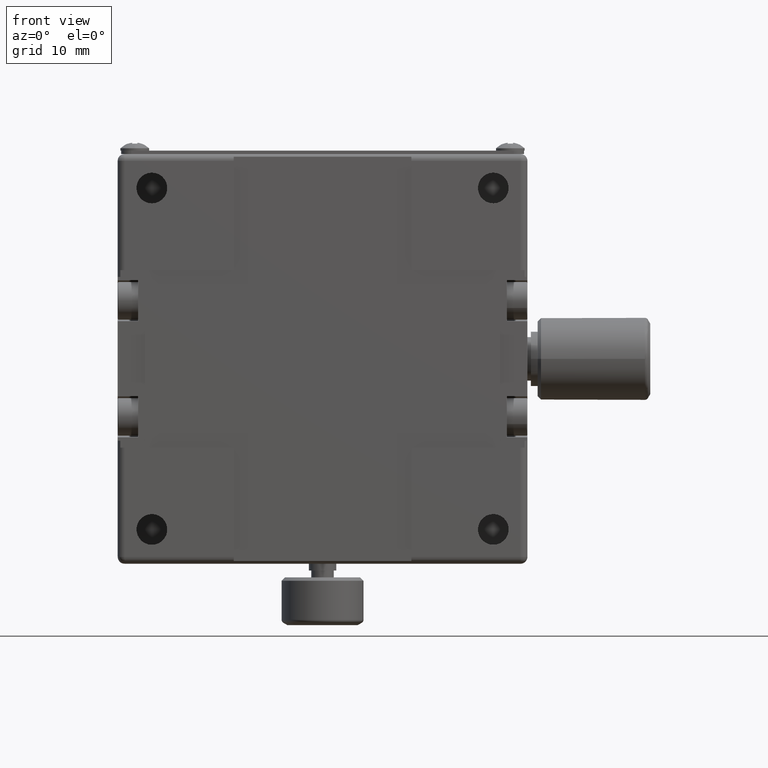
[diagram: clean part render]
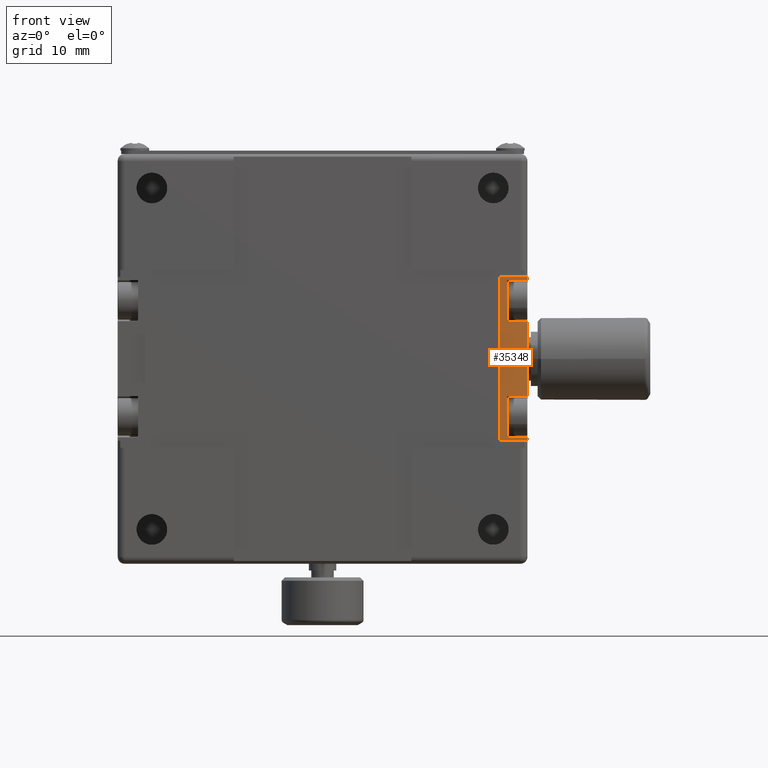
[diagram: same view with one face highlighted and labeled with its STEP entity id]
A machine part, front view. The second image highlights one B-rep face of the part: STEP entity #35348.
In plain terms, the highlighted planar face has unit normal (0, 1, -0).
Its self-contained STEP definition (entity closure, byte-faithful):
#53 = VERTEX_POINT ( 'NONE', #21721 ) ;
#278 = CARTESIAN_POINT ( 'NONE',  ( 27.20294266869609956, -24.89231131468095271, 5.500000000000000000 ) ) ;
#440 = VECTOR ( 'NONE', #8437, 1000.000000000000000 ) ;
#912 = EDGE_CURVE ( 'NONE', #13073, #11714, #18835, .T. ) ;
#1218 = DIRECTION ( 'NONE',  ( -2.053761849782435228E-19, -1.665334536937734811E-16, -1.000000000000000000 ) ) ;
#1238 = LINE ( 'NONE', #3839, #7517 ) ;
#2395 = DIRECTION ( 'NONE',  ( 1.000000000000000000, -5.419128459088559373E-17, -2.053761849781410152E-19 ) ) ;
#2646 = EDGE_CURVE ( 'NONE', #31829, #6796, #21951, .T. ) ;
#2654 = VECTOR ( 'NONE', #4672, 1000.000000000000000 ) ;
#2740 = CARTESIAN_POINT ( 'NONE',  ( 27.20294266869609956, -24.89231131468095271, 5.500000000000000000 ) ) ;
#2783 = VECTOR ( 'NONE', #30238, 1000.000000000000000 ) ;
#2976 = EDGE_CURVE ( 'NONE', #53, #17067, #1238, .T. ) ;
#3292 = LINE ( 'NONE', #20455, #25927 ) ;
#3839 = CARTESIAN_POINT ( 'NONE',  ( 26.20294266869610311, -24.89231131468095271, 12.00000000000000000 ) ) ;
#4033 = AXIS2_PLACEMENT_3D ( 'NONE', #7649, #21632, #23918 ) ;
#4130 = FACE_OUTER_BOUND ( 'NONE', #33799, .T. ) ;
#4303 = DIRECTION ( 'NONE',  ( -2.053761849782440284E-19, -1.713802692070384842E-16, -1.000000000000000000 ) ) ;
#4446 = CARTESIAN_POINT ( 'NONE',  ( 30.20294266869610311, -24.89231131468095271, 11.50000000000000000 ) ) ;
#4672 = DIRECTION ( 'NONE',  ( 1.000000000000000000, -5.419128459088559373E-17, -2.053761849781410152E-19 ) ) ;
#4855 = CARTESIAN_POINT ( 'NONE',  ( 17.59825631254680189, -24.89231131468095271, -11.50000000000000000 ) ) ;
#5420 = ORIENTED_EDGE ( 'NONE', *, *, #12001, .F. ) ;
#5466 = EDGE_CURVE ( 'NONE', #31829, #21477, #7473, .T. ) ;
#6149 = CARTESIAN_POINT ( 'NONE',  ( 30.20294266869610311, -24.89231131468095271, 12.00000000000000000 ) ) ;
#6205 = VERTEX_POINT ( 'NONE', #26783 ) ;
#6520 = VERTEX_POINT ( 'NONE', #30016 ) ;
#6796 = VERTEX_POINT ( 'NONE', #18736 ) ;
#7170 = CARTESIAN_POINT ( 'NONE',  ( 30.20294266869610311, -24.89231131468095271, 12.00000000000000000 ) ) ;
#7473 = LINE ( 'NONE', #30055, #2783 ) ;
#7517 = VECTOR ( 'NONE', #12628, 1000.000000000000000 ) ;
#7649 = CARTESIAN_POINT ( 'NONE',  ( 30.20294266869610311, -24.89231131468095271, 12.00000000000000000 ) ) ;
#8437 = DIRECTION ( 'NONE',  ( -1.000000000000000000, 5.419128459088559373E-17, 2.053761849781410152E-19 ) ) ;
#8524 = CARTESIAN_POINT ( 'NONE',  ( 30.20294266869610311, -24.89231131468095271, 12.00000000000000000 ) ) ;
#9177 = LINE ( 'NONE', #20544, #32006 ) ;
#9504 = ORIENTED_EDGE ( 'NONE', *, *, #27034, .F. ) ;
#9576 = DIRECTION ( 'NONE',  ( -2.053761849782435228E-19, -1.665334536937734811E-16, -1.000000000000000000 ) ) ;
#9732 = EDGE_CURVE ( 'NONE', #32969, #13073, #9177, .T. ) ;
#9882 = ORIENTED_EDGE ( 'NONE', *, *, #20983, .T. ) ;
#9965 = LINE ( 'NONE', #23790, #9989 ) ;
#9989 = VECTOR ( 'NONE', #18541, 1000.000000000000000 ) ;
#10022 = CARTESIAN_POINT ( 'NONE',  ( 30.20294266869610311, -24.89231131468095271, -11.50000000000000000 ) ) ;
#10566 = LINE ( 'NONE', #8524, #22503 ) ;
#10568 = VECTOR ( 'NONE', #2395, 1000.000000000000000 ) ;
#11070 = VERTEX_POINT ( 'NONE', #12225 ) ;
#11091 = EDGE_CURVE ( 'NONE', #6520, #28673, #12962, .T. ) ;
#11179 = CARTESIAN_POINT ( 'NONE',  ( 17.59825631254680189, -24.89231131468095271, -5.500000000000000000 ) ) ;
#11593 = LINE ( 'NONE', #25391, #440 ) ;
#11714 = VERTEX_POINT ( 'NONE', #10022 ) ;
#11869 = VERTEX_POINT ( 'NONE', #21934 ) ;
#12001 = EDGE_CURVE ( 'NONE', #21477, #32876, #10566, .T. ) ;
#12013 = LINE ( 'NONE', #23751, #14301 ) ;
#12225 = CARTESIAN_POINT ( 'NONE',  ( 30.06896807248055126, -24.89231131468095271, 12.00000000000000000 ) ) ;
#12628 = DIRECTION ( 'NONE',  ( -2.053761849782435228E-19, -1.665334536937734811E-16, -1.000000000000000000 ) ) ;
#12962 = LINE ( 'NONE', #7170, #13024 ) ;
#13024 = VECTOR ( 'NONE', #1218, 1000.000000000000000 ) ;
#13073 = VERTEX_POINT ( 'NONE', #28321 ) ;
#13108 = ORIENTED_EDGE ( 'NONE', *, *, #32103, .T. ) ;
#13676 = LINE ( 'NONE', #16435, #28653 ) ;
#14301 = VECTOR ( 'NONE', #9576, 1000.000000000000000 ) ;
#15833 = ORIENTED_EDGE ( 'NONE', *, *, #9732, .F. ) ;
#16435 = CARTESIAN_POINT ( 'NONE',  ( 30.20294266869610311, -24.89231131468095271, -12.00000000000000000 ) ) ;
#17067 = VERTEX_POINT ( 'NONE', #26717 ) ;
#18541 = DIRECTION ( 'NONE',  ( 1.000000000000000000, -5.419128459088559373E-17, -2.053761849781410152E-19 ) ) ;
#18736 = CARTESIAN_POINT ( 'NONE',  ( 27.20294266869609956, -24.89231131468095271, 11.50000000000000000 ) ) ;
#18835 = LINE ( 'NONE', #4855, #2654 ) ;
#19067 = LINE ( 'NONE', #6149, #35319 ) ;
#19241 = DIRECTION ( 'NONE',  ( -1.000000000000000000, 5.419128459088559373E-17, 2.053761849781410152E-19 ) ) ;
#19368 = EDGE_CURVE ( 'NONE', #6796, #28673, #9965, .T. ) ;
#19837 = ORIENTED_EDGE ( 'NONE', *, *, #5466, .F. ) ;
#20027 = ORIENTED_EDGE ( 'NONE', *, *, #26707, .F. ) ;
#20455 = CARTESIAN_POINT ( 'NONE',  ( 30.20294266869610311, -24.89231131468095271, -12.00000000000000000 ) ) ;
#20544 = CARTESIAN_POINT ( 'NONE',  ( 27.20294266869609956, -24.89231131468095271, -5.500000000000000000 ) ) ;
#20633 = EDGE_CURVE ( 'NONE', #6520, #11070, #11593, .T. ) ;
#20983 = EDGE_CURVE ( 'NONE', #32969, #32876, #25344, .T. ) ;
#21468 = CARTESIAN_POINT ( 'NONE',  ( 27.20294266869609956, -24.89231131468095271, -5.500000000000000000 ) ) ;
#21477 = VERTEX_POINT ( 'NONE', #22499 ) ;
#21589 = ORIENTED_EDGE ( 'NONE', *, *, #24304, .F. ) ;
#21632 = DIRECTION ( 'NONE',  ( 5.419128459088559373E-17, 1.000000000000000000, -1.665334536937734811E-16 ) ) ;
#21721 = CARTESIAN_POINT ( 'NONE',  ( 26.20294266869610311, -24.89231131468095271, 12.00000000000000000 ) ) ;
#21934 = CARTESIAN_POINT ( 'NONE',  ( 30.06896807248055126, -24.89231131468095271, -12.00000000000000000 ) ) ;
#21951 = LINE ( 'NONE', #2740, #32538 ) ;
#22499 = CARTESIAN_POINT ( 'NONE',  ( 30.20294266869610311, -24.89231131468095271, 5.500000000000000000 ) ) ;
#22503 = VECTOR ( 'NONE', #33881, 1000.000000000000000 ) ;
#23751 = CARTESIAN_POINT ( 'NONE',  ( 30.20294266869610311, -24.89231131468095271, 12.00000000000000000 ) ) ;
#23790 = CARTESIAN_POINT ( 'NONE',  ( 17.59825631254680189, -24.89231131468095271, 11.50000000000000000 ) ) ;
#23918 = DIRECTION ( 'NONE',  ( 0.000000000000000000, -1.665334536937734811E-16, -1.000000000000000000 ) ) ;
#24304 = EDGE_CURVE ( 'NONE', #11869, #17067, #3292, .T. ) ;
#25344 = LINE ( 'NONE', #11179, #10568 ) ;
#25391 = CARTESIAN_POINT ( 'NONE',  ( 30.20294266869610311, -24.89231131468095271, 12.00000000000000000 ) ) ;
#25706 = ORIENTED_EDGE ( 'NONE', *, *, #20633, .T. ) ;
#25927 = VECTOR ( 'NONE', #34453, 1000.000000000000000 ) ;
#26707 = EDGE_CURVE ( 'NONE', #6205, #11869, #13676, .T. ) ;
#26717 = CARTESIAN_POINT ( 'NONE',  ( 26.20294266869610311, -24.89231131468095271, -12.00000000000000000 ) ) ;
#26783 = CARTESIAN_POINT ( 'NONE',  ( 30.20294266869610311, -24.89231131468095271, -12.00000000000000000 ) ) ;
#27034 = EDGE_CURVE ( 'NONE', #11714, #6205, #12013, .T. ) ;
#27526 = ORIENTED_EDGE ( 'NONE', *, *, #2976, .T. ) ;
#28123 = DIRECTION ( 'NONE',  ( 2.053761849782435228E-19, 1.616866381805085026E-16, 1.000000000000000000 ) ) ;
#28172 = DIRECTION ( 'NONE',  ( -1.000000000000000000, 5.419128459088559373E-17, 2.053761849781410152E-19 ) ) ;
#28321 = CARTESIAN_POINT ( 'NONE',  ( 27.20294266869609956, -24.89231131468095271, -11.50000000000000000 ) ) ;
#28653 = VECTOR ( 'NONE', #19241, 1000.000000000000000 ) ;
#28673 = VERTEX_POINT ( 'NONE', #4446 ) ;
#29162 = CARTESIAN_POINT ( 'NONE',  ( 30.20294266869610311, -24.89231131468095271, -5.500000000000000000 ) ) ;
#30016 = CARTESIAN_POINT ( 'NONE',  ( 30.20294266869610311, -24.89231131468095271, 12.00000000000000000 ) ) ;
#30055 = CARTESIAN_POINT ( 'NONE',  ( 17.59825631254680189, -24.89231131468095271, 5.500000000000000000 ) ) ;
#30238 = DIRECTION ( 'NONE',  ( 1.000000000000000000, -5.419128459088559373E-17, -2.053761849781410152E-19 ) ) ;
#31829 = VERTEX_POINT ( 'NONE', #278 ) ;
#32006 = VECTOR ( 'NONE', #4303, 1000.000000000000000 ) ;
#32103 = EDGE_CURVE ( 'NONE', #11070, #53, #19067, .T. ) ;
#32440 = ORIENTED_EDGE ( 'NONE', *, *, #19368, .T. ) ;
#32538 = VECTOR ( 'NONE', #28123, 1000.000000000000000 ) ;
#32876 = VERTEX_POINT ( 'NONE', #29162 ) ;
#32969 = VERTEX_POINT ( 'NONE', #21468 ) ;
#33799 = EDGE_LOOP ( 'NONE', ( #32440, #34857, #25706, #13108, #27526, #21589, #20027, #9504, #36178, #15833, #9882, #5420, #19837, #36186 ) ) ;
#33881 = DIRECTION ( 'NONE',  ( -2.053761849782435228E-19, -1.665334536937734811E-16, -1.000000000000000000 ) ) ;
#34453 = DIRECTION ( 'NONE',  ( -1.000000000000000000, 5.419128459088559373E-17, 2.053761849781410152E-19 ) ) ;
#34857 = ORIENTED_EDGE ( 'NONE', *, *, #11091, .F. ) ;
#35319 = VECTOR ( 'NONE', #28172, 1000.000000000000000 ) ;
#35348 = ADVANCED_FACE ( 'NONE', ( #4130 ), #35823, .F. ) ;
#35823 = PLANE ( 'NONE',  #4033 ) ;
#36178 = ORIENTED_EDGE ( 'NONE', *, *, #912, .F. ) ;
#36186 = ORIENTED_EDGE ( 'NONE', *, *, #2646, .T. ) ;